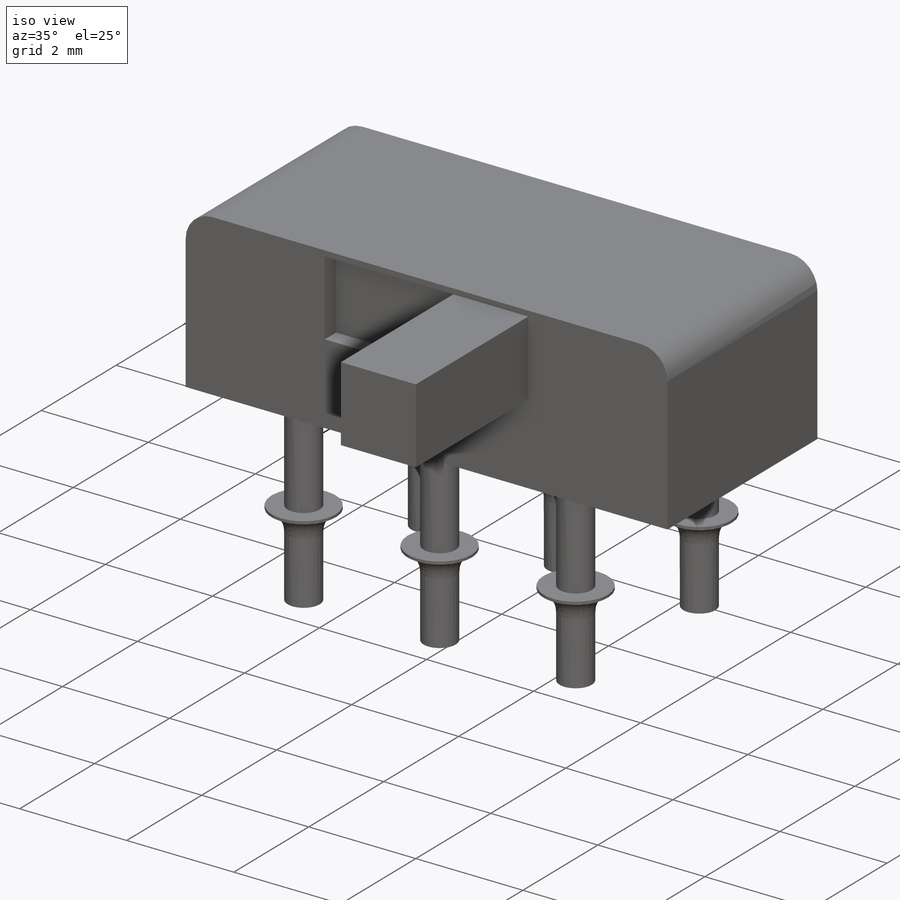
[diagram: iso view]
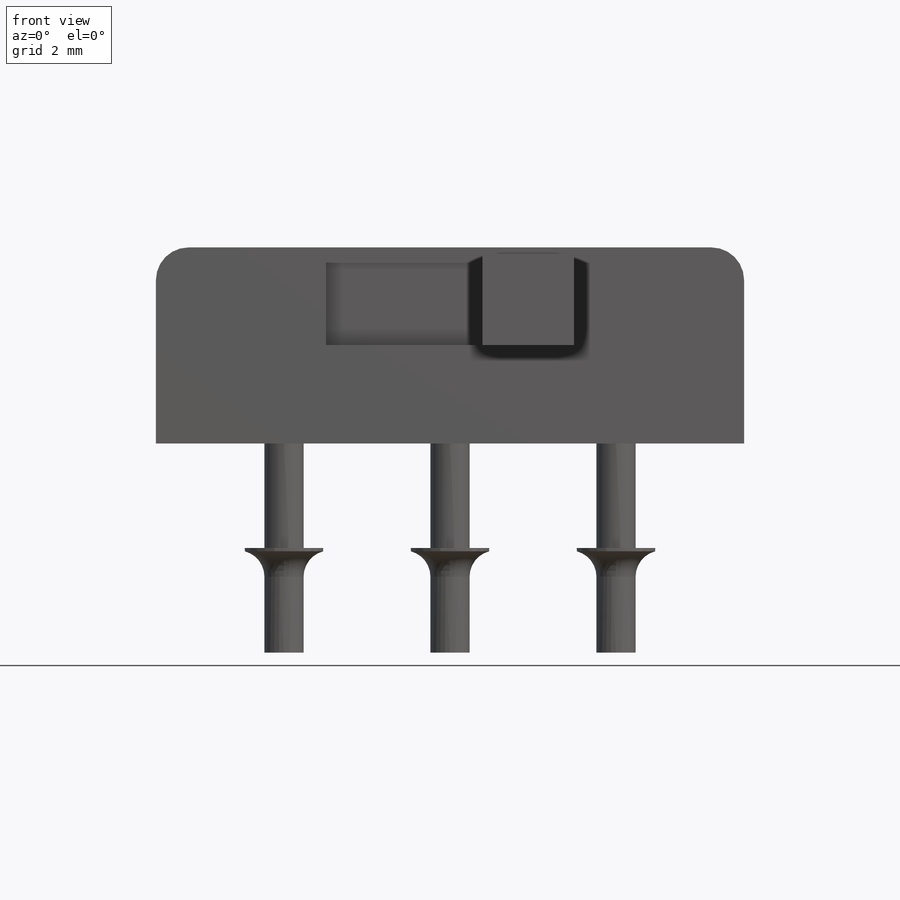
[diagram: front view]
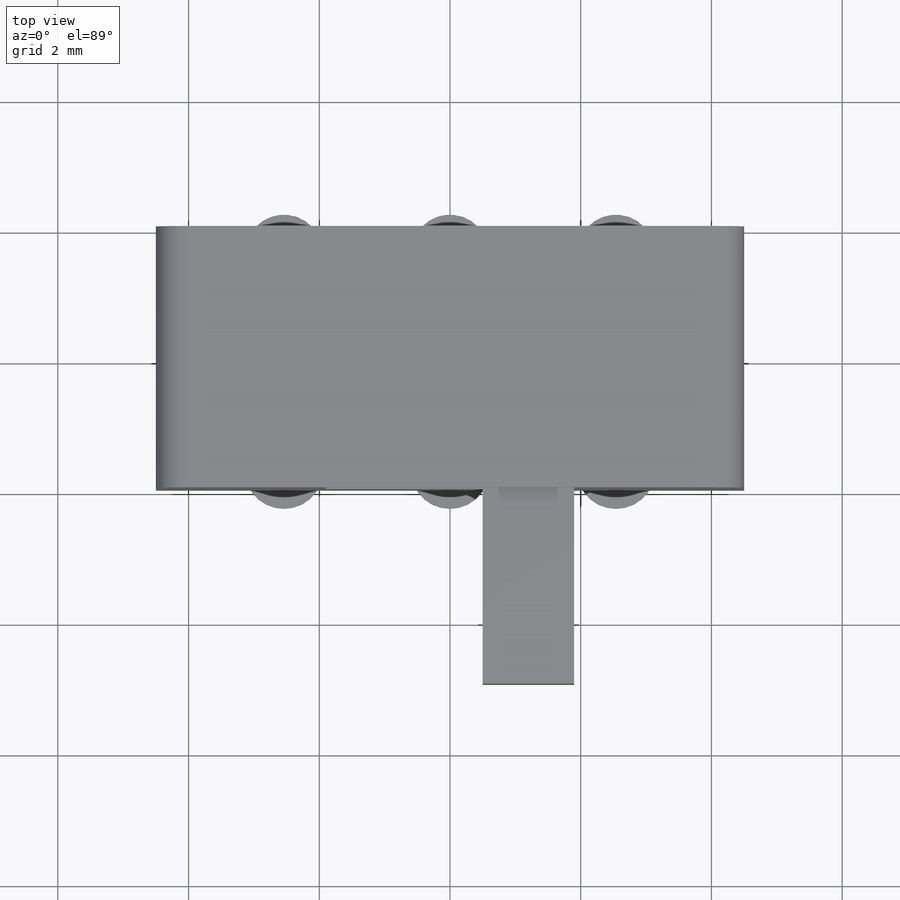
[diagram: top view]
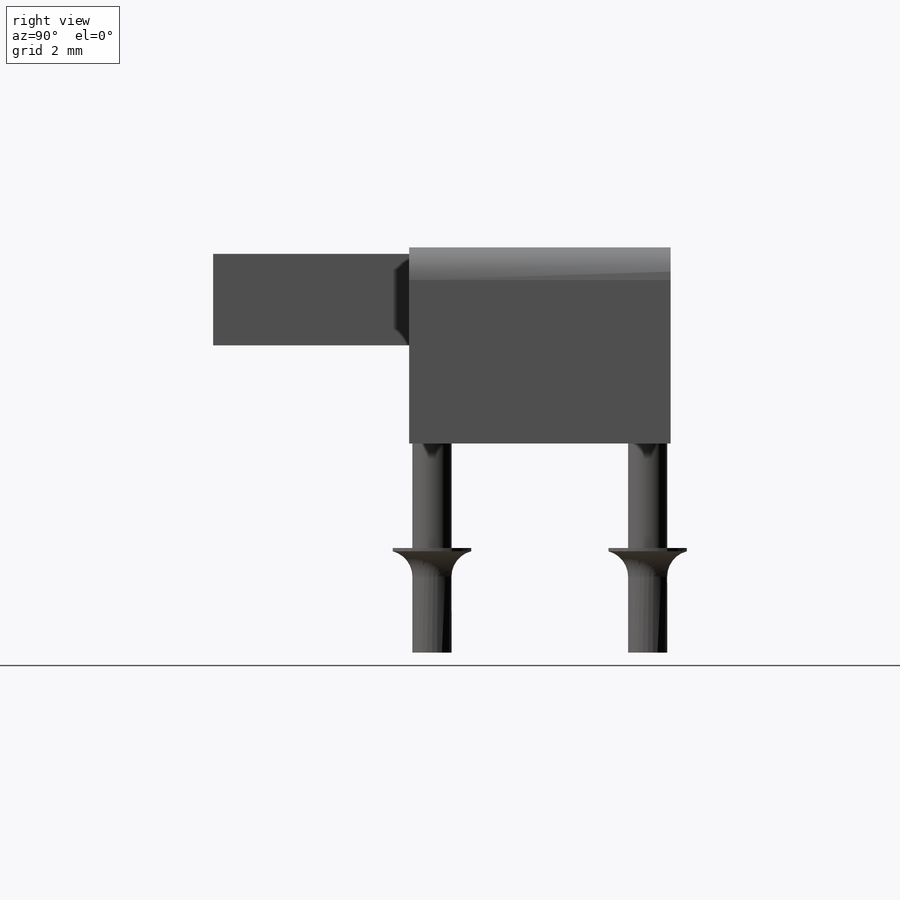
[diagram: right view]
SOLIDWORKS PART (.sldprt)
format: sldprt  version: not decoded by parser v0  size: 310,272 bytes
history: native  units: mm
features: sketch x5, extrude x4, plane x3, pattern_linear x2, material x1, cut_extrude x1, fillet x1 (+8 scaffold rows collapsed)
feature tree (25):
  scaffold x8  (default folders/planes/origin — collapsed)
  material  "Matériau <non spécifié>"
  plane  "Plan de face"
  plane  "Plan de dessus"
  plane  "Plan de droite"
  sketch  "Esquisse1"  dims[c1.D1=~6.870307mm c1.D2=~17.862799mm c2.D1=9.0mm c2.D2=4.0mm]
  extrude  "Boss.-Extru.1"  Depth=3mm
  sketch  "Esquisse2"  dims[c1.D1=~0.979866mm c1.D2=~1.248322mm c2.D1=2.6mm c2.D2=1.4mm c2.D3=0.1mm]
  extrude  "Boss.-Extru.2"  Depth=3mm
  sketch  "Esquisse3"  dims[c1.D1=1.4mm c1.D2=~3.121279mm c2.D1=2.6mm]
  cut_extrude  "Enlèv. mat.-Extru.1"  Depth=0.3mm
  sketch  "Esquisse4"  dims[c1.D1=0.6mm c1.D3=0.6mm c2.D1=~12.484406mm c2.D2=2.54mm c2.D3=1.65mm]
  extrude  "Boss.-Extru.3"  Depth=3.2mm
  sketch  "Esquisse5"  dims[D1=~0.518592mm]
  extrude  "Boss.-Extru.4"  Depth=0.05mm
  fillet  "Congé1"  Radius=0.4mm
  pattern_linear  "Répétition linéaire2"  Count1=3 Count2=2 Spacing1=2.54mm Spacing2=3.3mm
  pattern_linear  "Congé2"  Spacing1=0.5mm  [1 undecoded]
decode coverage: 13 of 13 modeling features carry decoded parameters
note: ~ marks probable driven/reference dimensions
note: 1 parameter value undecoded
note: suppression state not decoded; provenance and decode notes live in map.json
